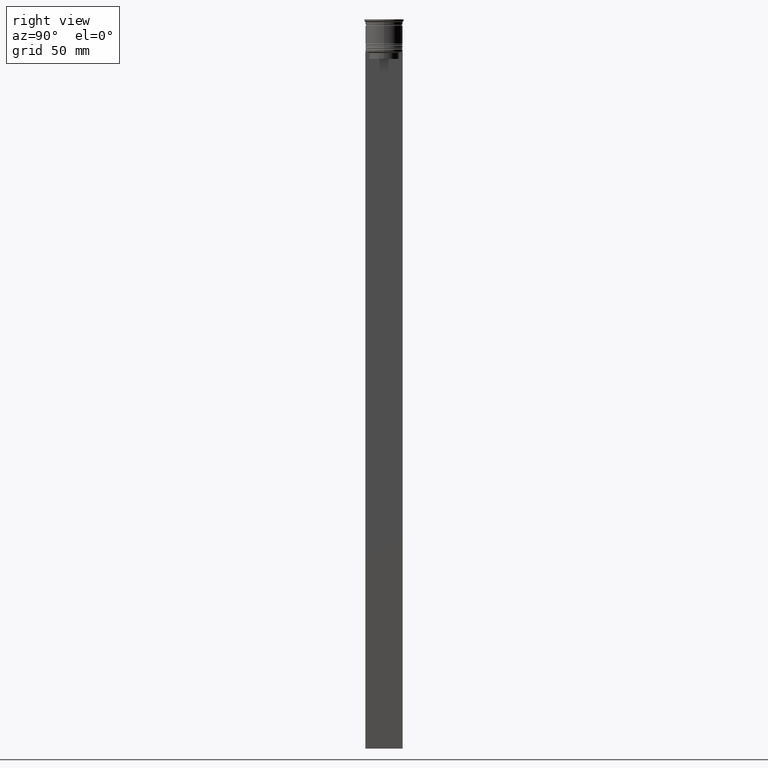
[diagram: clean part render]
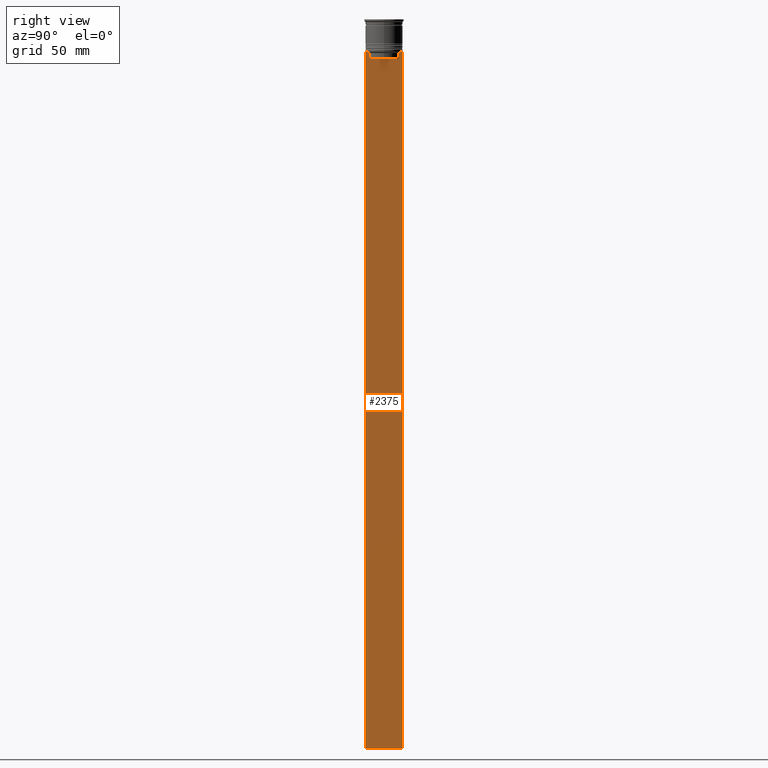
[diagram: same view with one face highlighted and labeled with its STEP entity id]
A machine part, right view. The second image highlights one B-rep face of the part: STEP entity #2375.
In plain terms, the highlighted planar face has unit normal (-1, 0, 0).
Its self-contained STEP definition (entity closure, byte-faithful):
#39 = LINE ( 'NONE', #1594, #1156 ) ;
#52 = LINE ( 'NONE', #1209, #792 ) ;
#111 = CARTESIAN_POINT ( 'NONE',  ( 0.5000000000000001110, 7.999999999999996447, -314.0000000000000000 ) ) ;
#115 = DIRECTION ( 'NONE',  ( 0.000000000000000000, -1.000000000000000000, 0.000000000000000000 ) ) ;
#140 = CARTESIAN_POINT ( 'NONE',  ( 0.5000000000000001110, -6.714736947305993908, -14.16668390685738821 ) ) ;
#141 = CARTESIAN_POINT ( 'NONE',  ( 0.5000000000000001110, 7.999999999999996447, -14.00000000000000178 ) ) ;
#159 = DIRECTION ( 'NONE',  ( 0.000000000000000000, 0.000000000000000000, -1.000000000000000000 ) ) ;
#179 = EDGE_CURVE ( 'NONE', #1700, #1983, #1980, .T. ) ;
#216 = DIRECTION ( 'NONE',  ( 0.000000000000000000, -1.000000000000000000, 0.000000000000000000 ) ) ;
#291 = VECTOR ( 'NONE', #1732, 1000.000000000000000 ) ;
#294 = EDGE_CURVE ( 'NONE', #343, #2289, #331, .T. ) ;
#307 = EDGE_CURVE ( 'NONE', #356, #592, #2228, .T. ) ;
#312 = CARTESIAN_POINT ( 'NONE',  ( 0.5000000000000001110, -8.000000000000003553, -14.00000000000000178 ) ) ;
#331 = LINE ( 'NONE', #1874, #1643 ) ;
#343 = VERTEX_POINT ( 'NONE', #1057 ) ;
#356 = VERTEX_POINT ( 'NONE', #141 ) ;
#367 = EDGE_CURVE ( 'NONE', #1983, #343, #39, .T. ) ;
#394 = CARTESIAN_POINT ( 'NONE',  ( 0.5000000000000001110, -8.000000000000003553, -314.0000000000000000 ) ) ;
#401 = CARTESIAN_POINT ( 'NONE',  ( 0.5000000000000001110, 7.884161337770806632, -14.00000000000000178 ) ) ;
#404 = VECTOR ( 'NONE', #1226, 1000.000000000000000 ) ;
#407 = VECTOR ( 'NONE', #465, 1000.000000000000000 ) ;
#424 = DIRECTION ( 'NONE',  ( 0.000000000000000000, 0.000000000000000000, -1.000000000000000000 ) ) ;
#427 = EDGE_CURVE ( 'NONE', #1186, #2114, #52, .T. ) ;
#437 = VERTEX_POINT ( 'NONE', #401 ) ;
#465 = DIRECTION ( 'NONE',  ( 0.000000000000000000, -1.000000000000000000, 0.000000000000000000 ) ) ;
#482 = ORIENTED_EDGE ( 'NONE', *, *, #179, .T. ) ;
#496 = LINE ( 'NONE', #1823, #1400 ) ;
#518 = DIRECTION ( 'NONE',  ( 0.000000000000000000, 0.000000000000000000, -1.000000000000000000 ) ) ;
#558 = B_SPLINE_CURVE_WITH_KNOTS ( 'NONE', 3,
 ( #888, #1090, #140, #904 ),
 .UNSPECIFIED., .F., .F.,
 ( 4, 4 ),
 ( 0.02996184199614751464, 0.03067452609193705923 ),
 .UNSPECIFIED. ) ;
#591 = EDGE_CURVE ( 'NONE', #1439, #1186, #947, .T. ) ;
#592 = VERTEX_POINT ( 'NONE', #111 ) ;
#629 = PLANE ( 'NONE',  #2335 ) ;
#792 = VECTOR ( 'NONE', #424, 1000.000000000000000 ) ;
#841 = ORIENTED_EDGE ( 'NONE', *, *, #294, .T. ) ;
#877 = CARTESIAN_POINT ( 'NONE',  ( 0.5000000000000001110, 6.547597841304911626, -14.33335192459222718 ) ) ;
#888 = CARTESIAN_POINT ( 'NONE',  ( 0.5000000000000001110, -6.380438856379708312, -14.50000000000000000 ) ) ;
#904 = CARTESIAN_POINT ( 'NONE',  ( 0.5000000000000001110, -6.881860213634098500, -14.00000000000000178 ) ) ;
#947 = B_SPLINE_CURVE_WITH_KNOTS ( 'NONE', 3,
 ( #2399, #1444, #877, #2224 ),
 .UNSPECIFIED., .F., .F.,
 ( 4, 4 ),
 ( 0.01172465562756038263, 0.01243276816391822651 ),
 .UNSPECIFIED. ) ;
#966 = LINE ( 'NONE', #1554, #2027 ) ;
#973 = CARTESIAN_POINT ( 'NONE',  ( 0.5000000000000001110, -6.881860213634098500, -14.00000000000000178 ) ) ;
#982 = CARTESIAN_POINT ( 'NONE',  ( 0.5000000000000001110, -8.000000000000003553, 2.031219541881394530 ) ) ;
#1027 = ORIENTED_EDGE ( 'NONE', *, *, #1871, .T. ) ;
#1030 = DIRECTION ( 'NONE',  ( 0.000000000000000000, -1.000000000000000000, 0.000000000000000000 ) ) ;
#1057 = CARTESIAN_POINT ( 'NONE',  ( 0.5000000000000001110, -8.000000000000003553, -14.00000000000000178 ) ) ;
#1079 = CARTESIAN_POINT ( 'NONE',  ( 0.5000000000000001110, 6.881860213634098500, -14.00000000000000178 ) ) ;
#1088 = EDGE_CURVE ( 'NONE', #2179, #1618, #966, .T. ) ;
#1090 = CARTESIAN_POINT ( 'NONE',  ( 0.5000000000000001110, -6.547597841511247019, -14.33335192438652150 ) ) ;
#1146 = EDGE_CURVE ( 'NONE', #1618, #1700, #558, .T. ) ;
#1156 = VECTOR ( 'NONE', #216, 1000.000000000000000 ) ;
#1186 = VERTEX_POINT ( 'NONE', #2263 ) ;
#1191 = DIRECTION ( 'NONE',  ( -0.000000000000000000, -0.000000000000000000, 1.000000000000000000 ) ) ;
#1209 = CARTESIAN_POINT ( 'NONE',  ( 0.5000000000000001110, 6.380438856379708312, 0.000000000000000000 ) ) ;
#1226 = DIRECTION ( 'NONE',  ( 0.000000000000000000, -1.000000000000000000, 0.000000000000000000 ) ) ;
#1302 = DIRECTION ( 'NONE',  ( -1.000000000000000000, 0.000000000000000000, 0.000000000000000000 ) ) ;
#1339 = EDGE_CURVE ( 'NONE', #356, #437, #1632, .T. ) ;
#1400 = VECTOR ( 'NONE', #115, 1000.000000000000000 ) ;
#1413 = ORIENTED_EDGE ( 'NONE', *, *, #1088, .T. ) ;
#1417 = ORIENTED_EDGE ( 'NONE', *, *, #2295, .T. ) ;
#1439 = VERTEX_POINT ( 'NONE', #1079 ) ;
#1444 = CARTESIAN_POINT ( 'NONE',  ( 0.5000000000000001110, 6.714736947114692711, -14.16668390704818847 ) ) ;
#1538 = ORIENTED_EDGE ( 'NONE', *, *, #1146, .T. ) ;
#1554 = CARTESIAN_POINT ( 'NONE',  ( 0.5000000000000001110, -6.380438856379708312, 0.000000000000000000 ) ) ;
#1594 = CARTESIAN_POINT ( 'NONE',  ( 0.5000000000000001110, -8.000000000000003553, -14.00000000000000178 ) ) ;
#1618 = VERTEX_POINT ( 'NONE', #1840 ) ;
#1632 = LINE ( 'NONE', #312, #404 ) ;
#1643 = VECTOR ( 'NONE', #159, 1000.000000000000000 ) ;
#1652 = ORIENTED_EDGE ( 'NONE', *, *, #1728, .T. ) ;
#1700 = VERTEX_POINT ( 'NONE', #973 ) ;
#1728 = EDGE_CURVE ( 'NONE', #2289, #592, #1939, .T. ) ;
#1732 = DIRECTION ( 'NONE',  ( 0.000000000000000000, 1.000000000000000000, 0.000000000000000000 ) ) ;
#1759 = CARTESIAN_POINT ( 'NONE',  ( 0.5000000000000001110, -8.000000000000003553, -14.00000000000000178 ) ) ;
#1780 = CARTESIAN_POINT ( 'NONE',  ( 0.5000000000000001110, -6.380438856379708312, -17.00000000000000000 ) ) ;
#1805 = ORIENTED_EDGE ( 'NONE', *, *, #591, .T. ) ;
#1823 = CARTESIAN_POINT ( 'NONE',  ( 0.5000000000000001110, 6.399999999999999467, -17.00000000000000000 ) ) ;
#1827 = VECTOR ( 'NONE', #518, 1000.000000000000000 ) ;
#1840 = CARTESIAN_POINT ( 'NONE',  ( 0.5000000000000001110, -6.380438856379708312, -14.50000000000000000 ) ) ;
#1863 = ORIENTED_EDGE ( 'NONE', *, *, #427, .T. ) ;
#1871 = EDGE_CURVE ( 'NONE', #437, #1439, #2364, .T. ) ;
#1874 = CARTESIAN_POINT ( 'NONE',  ( 0.5000000000000001110, -8.000000000000003553, 2.031219541881394530 ) ) ;
#1939 = LINE ( 'NONE', #394, #291 ) ;
#1942 = ORIENTED_EDGE ( 'NONE', *, *, #367, .T. ) ;
#1980 = LINE ( 'NONE', #1759, #1999 ) ;
#1983 = VERTEX_POINT ( 'NONE', #2104 ) ;
#1999 = VECTOR ( 'NONE', #1030, 1000.000000000000000 ) ;
#2027 = VECTOR ( 'NONE', #1191, 1000.000000000000000 ) ;
#2091 = DIRECTION ( 'NONE',  ( 0.000000000000000000, 0.000000000000000000, 1.000000000000000000 ) ) ;
#2104 = CARTESIAN_POINT ( 'NONE',  ( 0.5000000000000001110, -7.884161337770806632, -14.00000000000000178 ) ) ;
#2114 = VERTEX_POINT ( 'NONE', #2152 ) ;
#2152 = CARTESIAN_POINT ( 'NONE',  ( 0.5000000000000001110, 6.380438856379708312, -17.00000000000000000 ) ) ;
#2179 = VERTEX_POINT ( 'NONE', #1780 ) ;
#2198 = CARTESIAN_POINT ( 'NONE',  ( 0.5000000000000001110, -8.000000000000003553, -314.0000000000000000 ) ) ;
#2216 = CARTESIAN_POINT ( 'NONE',  ( 0.5000000000000001110, -8.000000000000003553, -14.00000000000000178 ) ) ;
#2222 = EDGE_LOOP ( 'NONE', ( #1027, #1805, #1863, #1417, #1413, #1538, #482, #1942, #841, #1652, #2308, #2398 ) ) ;
#2224 = CARTESIAN_POINT ( 'NONE',  ( 0.5000000000000001110, 6.380438856379708312, -14.50000000000000000 ) ) ;
#2228 = LINE ( 'NONE', #2256, #1827 ) ;
#2256 = CARTESIAN_POINT ( 'NONE',  ( 0.5000000000000001110, 7.999999999999996447, 2.031219541881394530 ) ) ;
#2263 = CARTESIAN_POINT ( 'NONE',  ( 0.5000000000000001110, 6.380438856379708312, -14.50000000000000000 ) ) ;
#2282 = FACE_OUTER_BOUND ( 'NONE', #2222, .T. ) ;
#2289 = VERTEX_POINT ( 'NONE', #2198 ) ;
#2295 = EDGE_CURVE ( 'NONE', #2114, #2179, #496, .T. ) ;
#2308 = ORIENTED_EDGE ( 'NONE', *, *, #307, .F. ) ;
#2335 = AXIS2_PLACEMENT_3D ( 'NONE', #982, #1302, #2091 ) ;
#2364 = LINE ( 'NONE', #2216, #407 ) ;
#2375 = ADVANCED_FACE ( 'NONE', ( #2282 ), #629, .F. ) ;
#2398 = ORIENTED_EDGE ( 'NONE', *, *, #1339, .T. ) ;
#2399 = CARTESIAN_POINT ( 'NONE',  ( 0.5000000000000001110, 6.881860213634098500, -14.00000000000000178 ) ) ;